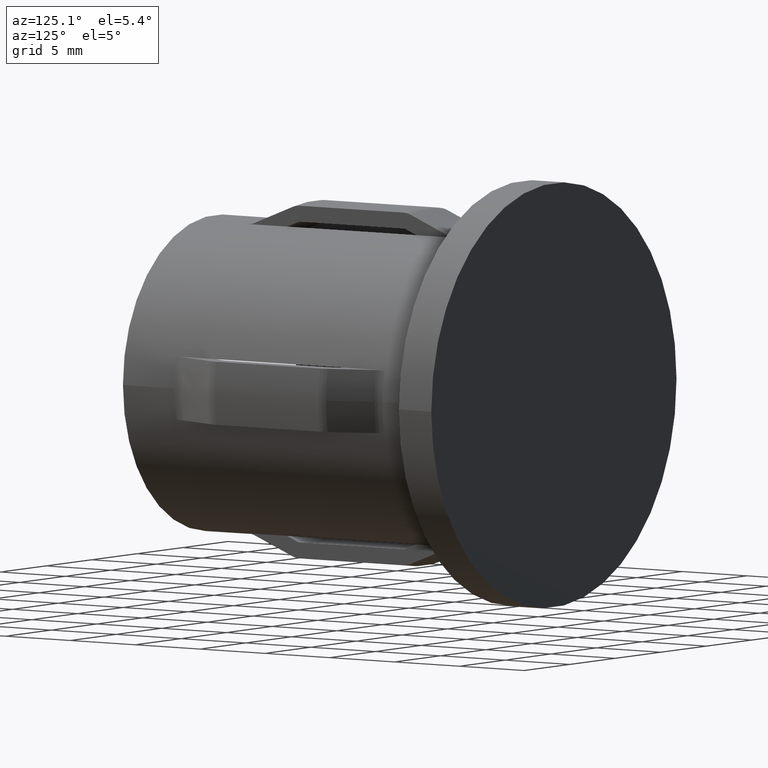
[diagram: clean part render]
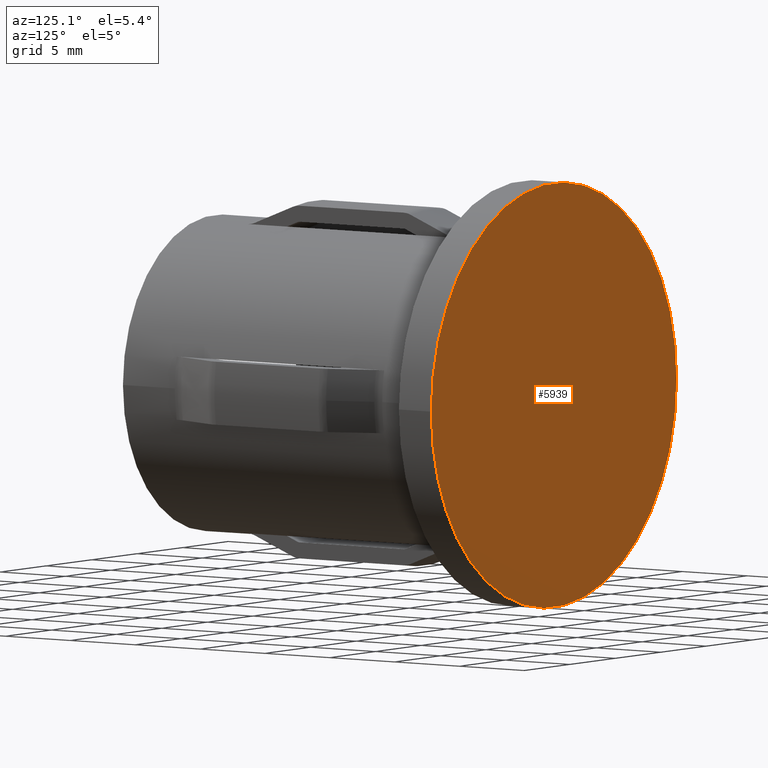
[diagram: same view with one face highlighted and labeled with its STEP entity id]
A machine part, auxiliary view. The second image highlights one B-rep face of the part: STEP entity #5939.
In plain terms, the highlighted planar face has unit normal (-0, -1, 0).
Its self-contained STEP definition (entity closure, byte-faithful):
#60 = PLANE ( 'NONE',  #3672 ) ;
#618 = DIRECTION ( 'NONE',  ( 7.347880794884120229E-17, 1.000000000000000000, -0.000000000000000000 ) ) ;
#1201 = VERTEX_POINT ( 'NONE', #2601 ) ;
#1273 = ORIENTED_EDGE ( 'NONE', *, *, #11330, .T. ) ;
#2601 = CARTESIAN_POINT ( 'NONE',  ( 13.44999999999999929, 26.19999999999999929, 1.647149944853189991E-15 ) ) ;
#3672 = AXIS2_PLACEMENT_3D ( 'NONE', #4429, #13003, #4384 ) ;
#4011 = CARTESIAN_POINT ( 'NONE',  ( 3.673940397442063812E-16, 26.19999999999999929, 0.000000000000000000 ) ) ;
#4384 = DIRECTION ( 'NONE',  ( 1.000000000000000000, -7.347880794884120229E-17, 0.000000000000000000 ) ) ;
#4429 = CARTESIAN_POINT ( 'NONE',  ( 3.673940397442063319E-16, 26.19999999999999929, 0.000000000000000000 ) ) ;
#5080 = CIRCLE ( 'NONE', #8709, 13.44999999999999929 ) ;
#5197 = ORIENTED_EDGE ( 'NONE', *, *, #9248, .T. ) ;
#5939 = ADVANCED_FACE ( 'NONE', ( #6941 ), #60, .F. ) ;
#6941 = FACE_OUTER_BOUND ( 'NONE', #8522, .T. ) ;
#6995 = CARTESIAN_POINT ( 'NONE',  ( -13.44999999999999929, 26.19999999999999929, 0.000000000000000000 ) ) ;
#7030 = CARTESIAN_POINT ( 'NONE',  ( 3.673940397442063812E-16, 26.19999999999999929, 0.000000000000000000 ) ) ;
#8084 = DIRECTION ( 'NONE',  ( -1.000000000000000000, 0.000000000000000000, 0.000000000000000000 ) ) ;
#8522 = EDGE_LOOP ( 'NONE', ( #1273, #5197 ) ) ;
#8709 = AXIS2_PLACEMENT_3D ( 'NONE', #4011, #618, #8084 ) ;
#9248 = EDGE_CURVE ( 'NONE', #1201, #10305, #9734, .T. ) ;
#9734 = CIRCLE ( 'NONE', #9892, 13.44999999999999929 ) ;
#9892 = AXIS2_PLACEMENT_3D ( 'NONE', #7030, #10116, #13366 ) ;
#10116 = DIRECTION ( 'NONE',  ( 7.347880794884120229E-17, 1.000000000000000000, -0.000000000000000000 ) ) ;
#10305 = VERTEX_POINT ( 'NONE', #6995 ) ;
#11330 = EDGE_CURVE ( 'NONE', #10305, #1201, #5080, .T. ) ;
#13003 = DIRECTION ( 'NONE',  ( -7.347880794884120229E-17, -1.000000000000000000, 0.000000000000000000 ) ) ;
#13366 = DIRECTION ( 'NONE',  ( -1.000000000000000000, 0.000000000000000000, 0.000000000000000000 ) ) ;